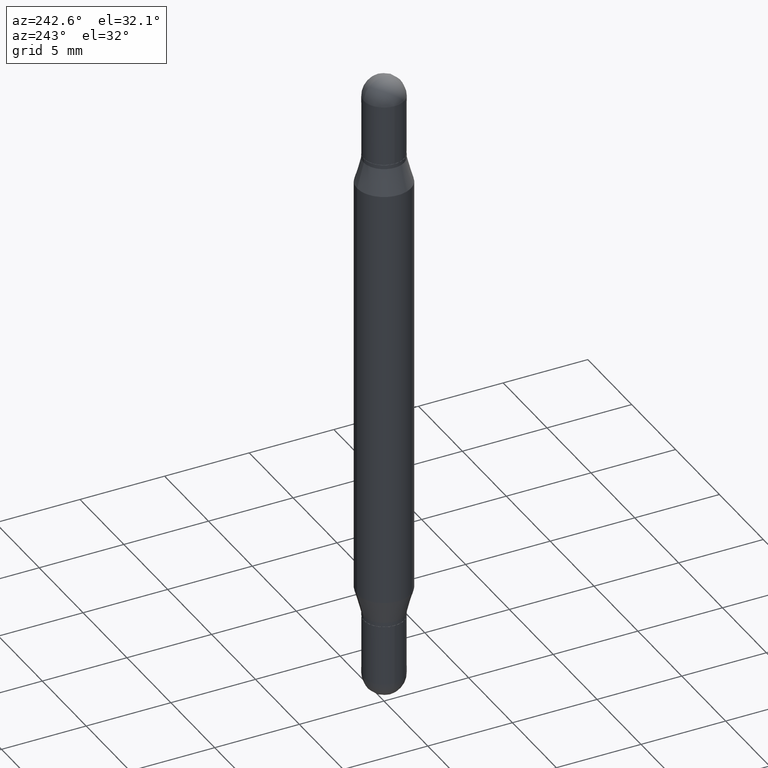
[diagram: clean part render]
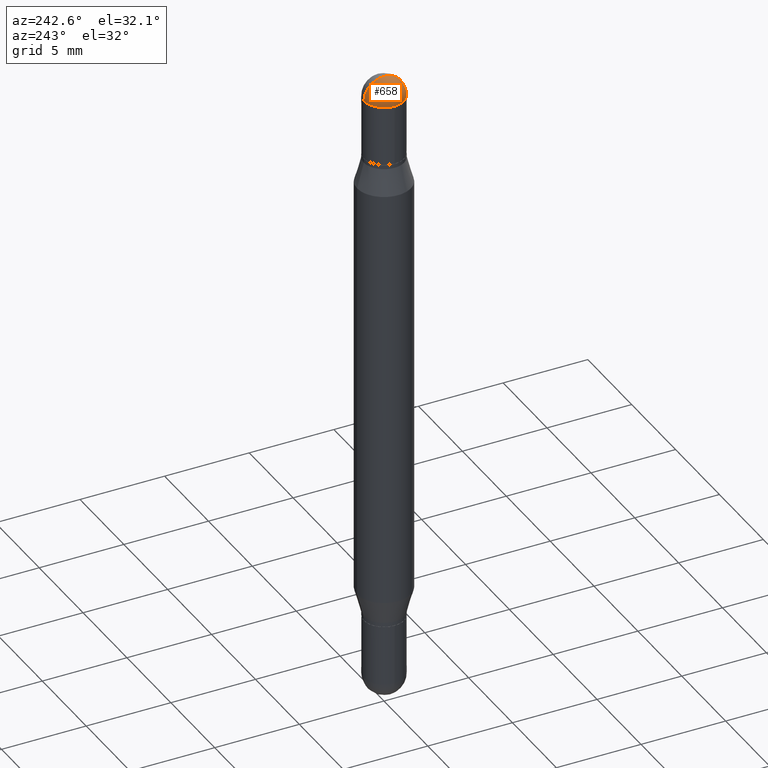
[diagram: same view with one face highlighted and labeled with its STEP entity id]
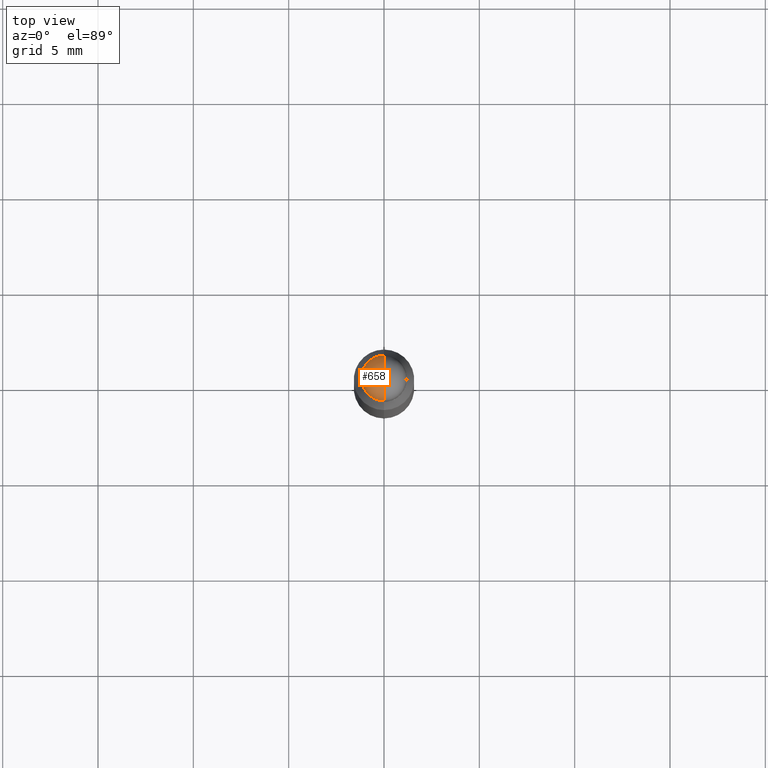
[diagram: same view with one face highlighted and labeled with its STEP entity id]
A machine part, auxiliary view. The second image highlights one B-rep face of the part: STEP entity #658.
A second angle (top view) of the same face is appended — the face is thin or edge-on in the first view.
In plain terms, the highlighted spherical surface has radius 1.1913 mm.
Its self-contained STEP definition (entity closure, byte-faithful):
#44 = AXIS2_PLACEMENT_3D ( 'NONE', #190, #205, #220 ) ;
#64 = DIRECTION ( 'NONE',  ( -6.982962677686265922E-15, -1.000000000000000000, 3.458496260635717735E-15 ) ) ;
#80 = VERTEX_POINT ( 'NONE', #235 ) ;
#97 = DIRECTION ( 'NONE',  ( 1.000000000000000000, -6.982962677686265922E-15, -1.566701062080016245E-31 ) ) ;
#102 = ORIENTED_EDGE ( 'NONE', *, *, #904, .F. ) ;
#108 = CIRCLE ( 'NONE', #559, 0.04689999999999999725 ) ;
#113 = CARTESIAN_POINT ( 'NONE',  ( 3.553510722267622201E-29, -1.720940724002502970E-16, -0.04690000000000053154 ) ) ;
#116 = CARTESIAN_POINT ( 'NONE',  ( 3.217573560955207797E-16, 0.04689999999999990010, -0.04690000000000069114 ) ) ;
#123 = ORIENTED_EDGE ( 'NONE', *, *, #923, .T. ) ;
#131 = DIRECTION ( 'NONE',  ( 2.445468806185136597E-29, 3.479614466977828254E-15, 1.000000000000000000 ) ) ;
#136 = DIRECTION ( 'NONE',  ( 1.000000000000000000, -6.982962677686266711E-15, 0.000000000000000000 ) ) ;
#190 = CARTESIAN_POINT ( 'NONE',  ( 3.549499992371371099E-29, -1.778376658882507705E-16, -0.04690000000000025399 ) ) ;
#205 = DIRECTION ( 'NONE',  ( -1.000000000000000000, 6.860497997771530774E-15, 5.827999781331232286E-31 ) ) ;
#212 = CARTESIAN_POINT ( 'NONE',  ( 3.553510722267622201E-29, -1.720940724002502970E-16, -0.04690000000000053154 ) ) ;
#220 = DIRECTION ( 'NONE',  ( -6.860497997771530774E-15, -1.000000000000000000, 0.000000000000000000 ) ) ;
#235 = CARTESIAN_POINT ( 'NONE',  ( -0.04689999999999999725, -9.408370971656128076E-17, -0.04690000000000053154 ) ) ;
#238 = CARTESIAN_POINT ( 'NONE',  ( 3.662187114433328241E-29, -1.751554413099070675E-17, -1.195183497228115035E-16 ) ) ;
#275 = VERTEX_POINT ( 'NONE', #791 ) ;
#324 = VERTEX_POINT ( 'NONE', #116 ) ;
#340 = SPHERICAL_SURFACE ( 'NONE', #1038, 0.04690000000000013602 ) ;
#366 = EDGE_LOOP ( 'NONE', ( #102, #123, #408, #611 ) ) ;
#408 = ORIENTED_EDGE ( 'NONE', *, *, #1019, .T. ) ;
#444 = DIRECTION ( 'NONE',  ( 6.982962677686265133E-15, 1.000000000000000000, 0.000000000000000000 ) ) ;
#459 = DIRECTION ( 'NONE',  ( 2.445468806185136597E-29, 3.479614466977828254E-15, 1.000000000000000000 ) ) ;
#494 = CIRCLE ( 'NONE', #44, 0.04690000000000013602 ) ;
#559 = AXIS2_PLACEMENT_3D ( 'NONE', #212, #131, #136 ) ;
#570 = CARTESIAN_POINT ( 'NONE',  ( 3.549499992371371099E-29, -1.778376658882507705E-16, -0.04690000000000025399 ) ) ;
#575 = FACE_OUTER_BOUND ( 'NONE', #366, .T. ) ;
#611 = ORIENTED_EDGE ( 'NONE', *, *, #1047, .T. ) ;
#658 = ADVANCED_FACE ( 'NONE', ( #575 ), #340, .T. ) ;
#692 = CARTESIAN_POINT ( 'NONE',  ( 3.549499992371371099E-29, -1.778376658882507705E-16, -0.04690000000000025399 ) ) ;
#693 = VERTEX_POINT ( 'NONE', #238 ) ;
#729 = CIRCLE ( 'NONE', #811, 0.04689999999999999725 ) ;
#791 = CARTESIAN_POINT ( 'NONE',  ( -3.275009495834508474E-16, -0.04690000000000024011, -0.04690000000000036501 ) ) ;
#801 = DIRECTION ( 'NONE',  ( 1.000000000000000000, -6.982962677686266711E-15, 0.000000000000000000 ) ) ;
#811 = AXIS2_PLACEMENT_3D ( 'NONE', #113, #459, #801 ) ;
#833 = DIRECTION ( 'NONE',  ( -1.000000000000000000, 6.982962677686265922E-15, 1.566701062079987781E-31 ) ) ;
#904 = EDGE_CURVE ( 'NONE', #693, #275, #1069, .T. ) ;
#923 = EDGE_CURVE ( 'NONE', #693, #324, #494, .T. ) ;
#1017 = AXIS2_PLACEMENT_3D ( 'NONE', #692, #97, #444 ) ;
#1019 = EDGE_CURVE ( 'NONE', #324, #80, #108, .T. ) ;
#1038 = AXIS2_PLACEMENT_3D ( 'NONE', #570, #833, #64 ) ;
#1047 = EDGE_CURVE ( 'NONE', #80, #275, #729, .T. ) ;
#1069 = CIRCLE ( 'NONE', #1017, 0.04690000000000013602 ) ;